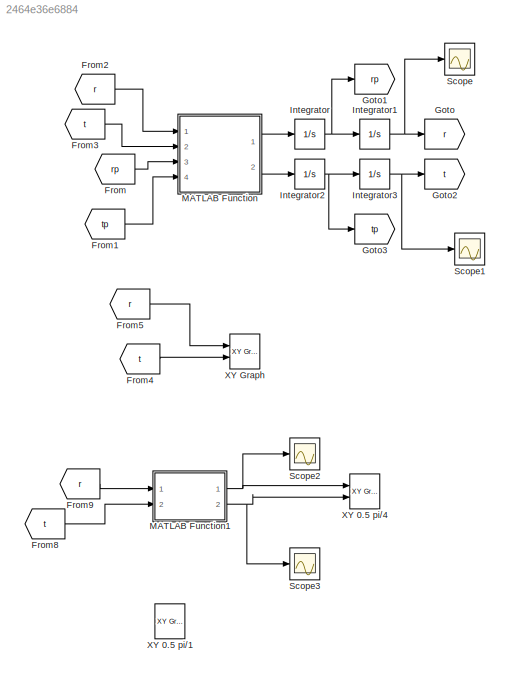
MODEL slx_2464e36e6884
KIND model
CONFIG AbsTol = auto
CONFIG EnableMultiTasking = off
CONFIG FixedStep = 1e-3
CONFIG MaxStep = 1e-3
CONFIG MinStep = auto
CONFIG RelTol = 1e-3
CONFIG SampleTimeConstraint = Unconstrained
CONFIG Solver = FixedStepAuto
CONFIG SolverName = FixedStepAuto
CONFIG StartTime = 0.0
CONFIG StopTime = 10
BLOCK [From] From
  GotoTag = rp
BLOCK [From] From1
  GotoTag = tp
BLOCK [From] From2
  GotoTag = r
BLOCK [From] From3
  GotoTag = t
BLOCK [From] From4
  Commented = on
  GotoTag = t
BLOCK [From] From5
  Commented = on
  GotoTag = r
BLOCK [From] From8
  GotoTag = t
BLOCK [From] From9
  GotoTag = r
BLOCK [Goto] Goto
  GotoTag = r
BLOCK [Goto] Goto1
  GotoTag = rp
BLOCK [Goto] Goto2
  GotoTag = t
BLOCK [Goto] Goto3
  GotoTag = tp
BLOCK [Integrator] Integrator
  Ports = [1, 1]
BLOCK [Integrator] Integrator1
  InitialCondition = 0.5
  Ports = [1, 1]
BLOCK [Integrator] Integrator2
  Ports = [1, 1]
BLOCK [Integrator] Integrator3
  InitialCondition = pi/8
  Ports = [1, 1]
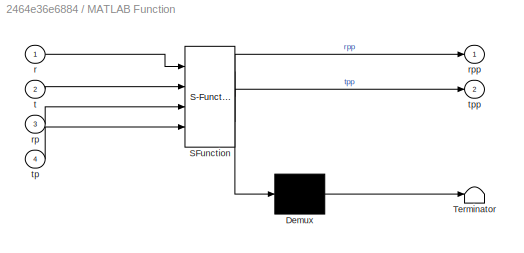
BLOCK [SubSystem] MATLAB Function
  ErrorFcn = Stateflow.Translate.translate
  PermitHierarchicalResolution = ExplicitOnly
  Ports = [4, 2]
  RequestExecContextInheritance = off
  SFBlockType = MATLAB Function
  TreatAsAtomicUnit = on
BLOCK [Demux] MATLAB Function/ Demux 
  Outputs = 1
  Ports = [1, 1]
BLOCK [S-Function] MATLAB Function/ SFunction 
  EnableBusSupport = on
  FunctionName = sf_sfun
  PortCounts = [4 3]
  Ports = [4, 3]
  SFcnIsStateOwnerBlock = off
  SFunctionDeploymentMode = off
  Tag = Stateflow S-Function pendulo_resorte 2
BLOCK [Terminator] MATLAB Function/ Terminator 
BLOCK [Inport] MATLAB Function/r
  IconDisplay = Port number
BLOCK [Inport] MATLAB Function/rp
  IconDisplay = Port number
  Port = 3
BLOCK [Outport] MATLAB Function/rpp
  IconDisplay = Port number
BLOCK [Inport] MATLAB Function/t
  IconDisplay = Port number
  Port = 2
BLOCK [Inport] MATLAB Function/tp
  IconDisplay = Port number
  Port = 4
BLOCK [Outport] MATLAB Function/tpp
  IconDisplay = Port number
  Port = 2
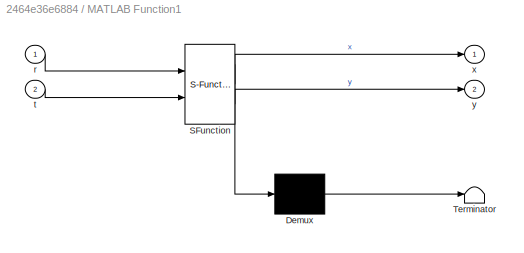
BLOCK [SubSystem] MATLAB Function1
  ErrorFcn = Stateflow.Translate.translate
  PermitHierarchicalResolution = ExplicitOnly
  Ports = [2, 2]
  RequestExecContextInheritance = off
  SFBlockType = MATLAB Function
  TreatAsAtomicUnit = on
BLOCK [Demux] MATLAB Function1/ Demux 
  Outputs = 1
  Ports = [1, 1]
BLOCK [S-Function] MATLAB Function1/ SFunction 
  EnableBusSupport = on
  FunctionName = sf_sfun
  PortCounts = [2 3]
  Ports = [2, 3]
  SFcnIsStateOwnerBlock = off
  SFunctionDeploymentMode = off
  Tag = Stateflow S-Function pendulo_resorte 1
BLOCK [Terminator] MATLAB Function1/ Terminator 
BLOCK [Inport] MATLAB Function1/r
  IconDisplay = Port number
BLOCK [Inport] MATLAB Function1/t
  IconDisplay = Port number
  Port = 2
BLOCK [Outport] MATLAB Function1/x
  IconDisplay = Port number
BLOCK [Outport] MATLAB Function1/y
  IconDisplay = Port number
  Port = 2
BLOCK [Scope] Scope
  Floating = off
  NumInputPorts = 1
  Ports = [1]
  ScopeSpecificationString = Simulink.scopes.TimeScopeBlockCfg('CurrentConfiguration', extmgr.ConfigurationSet(extmgr.Configuration('Core','General UI',true),extmgr.Configuration('Core','Source UI',true),extmgr.Configuration('Sources','WiredSimulink',true),extmgr.Configuration('Visuals','Time Domain',true,'SerializedDisplays',{struct('MinYLimReal','0.47507','MaxYLimReal','0.72441','YLabelReal','','MinYLimMag','0.47507','MaxYL...<+1389ch>
BLOCK [Scope] Scope1
  Floating = off
  NumInputPorts = 1
  Ports = [1]
  ScopeSpecificationString = Simulink.scopes.TimeScopeBlockCfg('CurrentConfiguration', extmgr.ConfigurationSet(extmgr.Configuration('Core','General UI',true),extmgr.Configuration('Core','Source UI',true),extmgr.Configuration('Sources','WiredSimulink',true,'DataLoggingVariableName','ScopeData1'),extmgr.Configuration('Visuals','Time Domain',true,'SerializedDisplays',{struct('MinYLimReal','-0.60672','MaxYLimReal','0.61008','YLab...<+1426ch>
BLOCK [Scope] Scope2
  Floating = off
  NumInputPorts = 1
  Ports = [1]
  ScopeSpecificationString = Simulink.scopes.TimeScopeBlockCfg('CurrentConfiguration', extmgr.ConfigurationSet(extmgr.Configuration('Core','General UI',true),extmgr.Configuration('Core','Source UI',true),extmgr.Configuration('Sources','WiredSimulink',true,'DataLoggingVariableName','ScopeData2'),extmgr.Configuration('Visuals','Time Domain',true,'SerializedDisplays',{struct('MinYLimReal','-0.37008','MaxYLimReal','0.3727','YLabe...<+1429ch>
BLOCK [Scope] Scope3
  Floating = off
  NumInputPorts = 1
  Ports = [1]
  ScopeSpecificationString = Simulink.scopes.TimeScopeBlockCfg('CurrentConfiguration', extmgr.ConfigurationSet(extmgr.Configuration('Core','General UI',true),extmgr.Configuration('Core','Source UI',true),extmgr.Configuration('Sources','WiredSimulink',true,'DataLoggingVariableName','ScopeData3'),extmgr.Configuration('Visuals','Time Domain',true,'SerializedDisplays',{struct('MinYLimReal','-0.72636','MaxYLimReal','-0.43256','YLa...<+1437ch>
BLOCK [Reference] XY 0.5 pi//1  REF=simulink/Sinks/XY Graph
  Commented = on
  Ports = [2]
  SourceBlock = simulink/Sinks/XY Graph
  SourceProductBaseCode = SL
  SourceProductName = Simulink
  SourceType = XY scope.
BLOCK [Reference] XY 0.5 pi//4  REF=simulink/Sinks/XY Graph
  Ports = [2]
  SourceBlock = simulink/Sinks/XY Graph
  SourceProductBaseCode = SL
  SourceProductName = Simulink
  SourceType = XY scope.
BLOCK [Reference] XY Graph  REF=simulink/Sinks/XY Graph
  Commented = on
  Ports = [2]
  SourceBlock = simulink/Sinks/XY Graph
  SourceProductBaseCode = SL
  SourceProductName = Simulink
  SourceType = XY scope.
LINE From1:1 -> MATLAB Function:4
LINE From2:1 -> MATLAB Function:1
LINE From3:1 -> MATLAB Function:2
LINE From4:1 -> XY Graph:2
LINE From5:1 -> XY Graph:1
LINE From8:1 -> MATLAB Function1:2
LINE From9:1 -> MATLAB Function1:1
LINE From:1 -> MATLAB Function:3
NET Integrator1:1 -> Goto:1, Scope:1
NET Integrator2:1 -> Goto3:1, Integrator3:1
NET Integrator3:1 -> Goto2:1, Scope1:1
NET Integrator:1 -> Goto1:1, Integrator1:1
NET MATLAB Function1:1 -> Scope2:1, XY 0.5 pi//4:1
NET MATLAB Function1:2 -> Scope3:1, XY 0.5 pi//4:2
LINE MATLAB Function:1 -> Integrator:1
LINE MATLAB Function:2 -> Integrator2:1
note: NET lines group one-source signal fan-out (src -> all destinations, sorted); 1:1 wires keep LINE
CHART MATLAB Function1 states=1 transitions=1
  STATE_LABEL 'eML_blk_kernel()'
  STATE_LABEL 'SCRIPT:\nfunction [x,y] = fcn(r,t)\n\nx = r*sin(t);\ny=-r*cos(t);\n'
CHART MATLAB Function states=1 transitions=1
  STATE_LABEL 'eML_blk_kernel()'
  STATE_LABEL 'SCRIPT:\nfunction [rpp,tpp] = fcn(r,t,rp,tp)\n\n%Parametros tsim=5\nl=0.5;\nm=1; %0.25\ng=9.8;\nk=100;\n\n%caos tini=pi/8; tini=pi/4 no tan caotico\n\n%Parametros caos tsim=50\n% l=0.5;\n% m=1; \n% g=9.8;\n% k=100;\n%ecuaciones\n\nrpp=r*tp^2-(k/m)*(r-l)+g*cos(t);\ntpp=-(2*rp*tp+g*sin(t))/r;\n'
